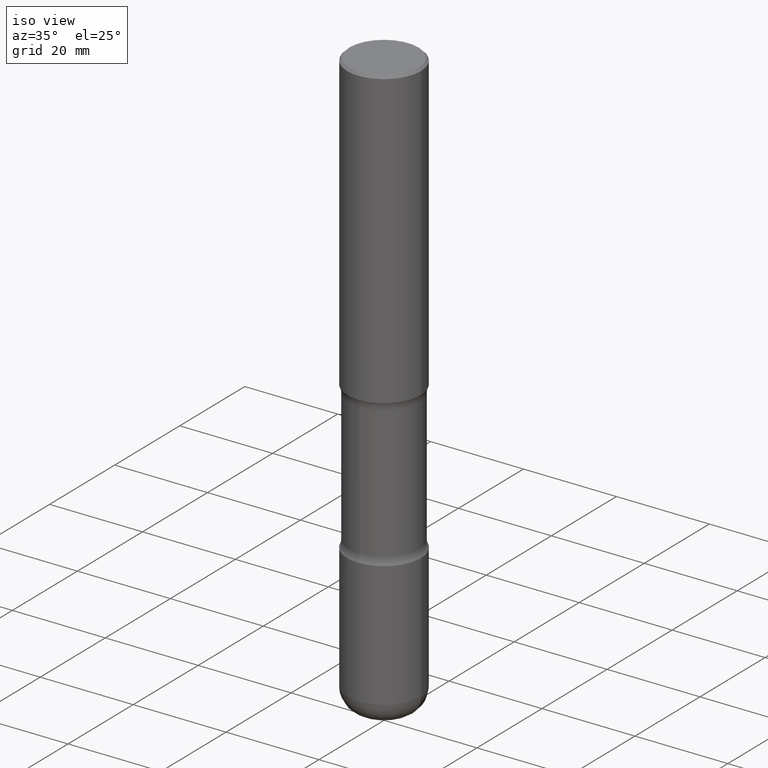
[diagram: clean part render]
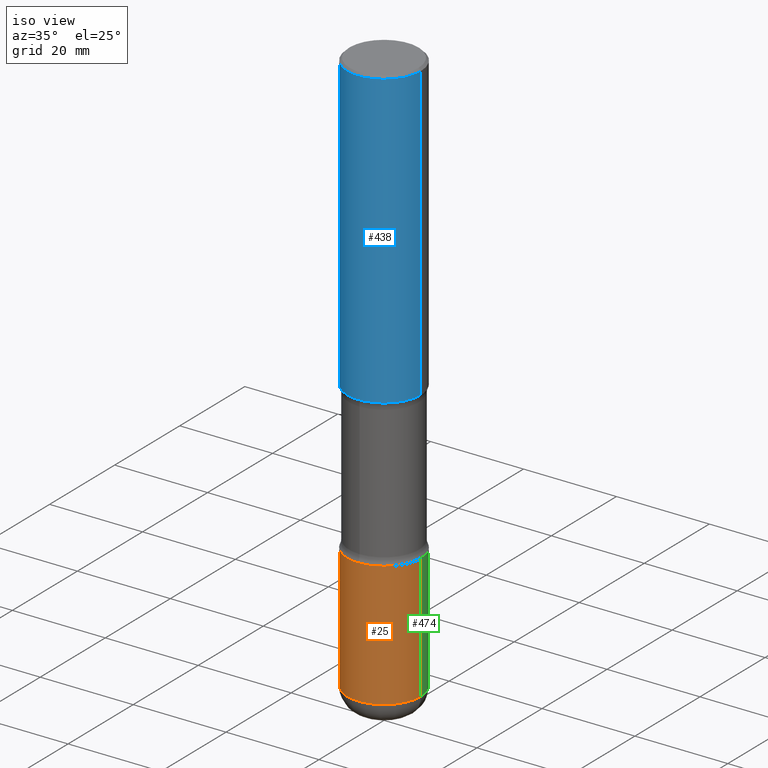
[diagram: same view with three faces highlighted in distinct colors, each labeled with its STEP entity id]
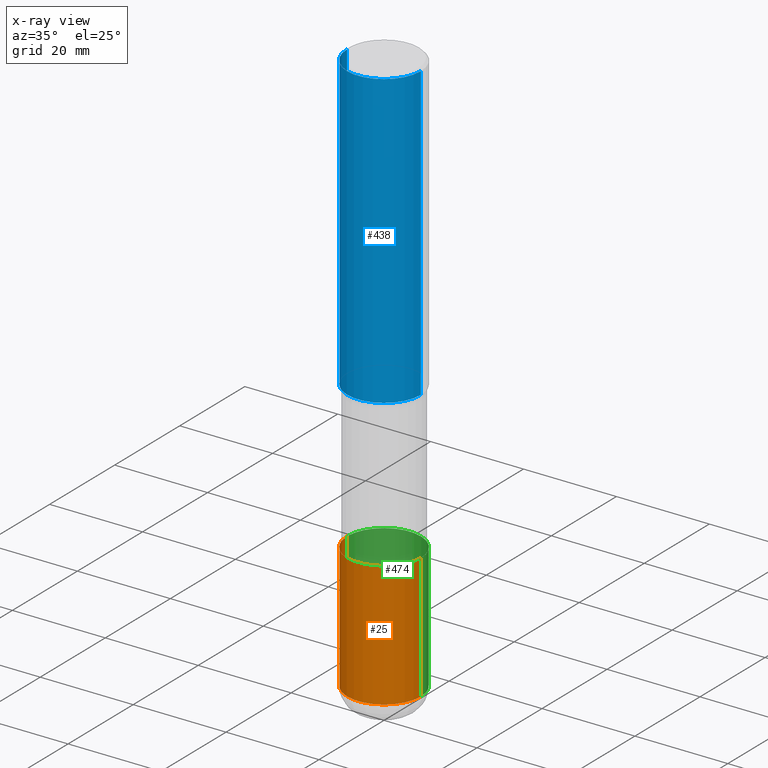
[diagram: x-ray of the same camera — body ghosted, the three highlighted faces saturated]
A machine part, iso view with three faces highlighted in distinct colors.
The next image is the same camera in x-ray (body ghosted, the three faces saturated) — at least one of them is partly hidden behind the body in this view.
Their STEP definitions:

[orange] entity #25 — the highlighted cylindrical surface (partial cylindrical patch) has radius 7.9375 mm, axis along (-0, 0, 1).
#25 = ADVANCED_FACE ( 'NONE', ( #50 ), #442, .T. ) ;
#42 = VERTEX_POINT ( 'NONE', #484 ) ;
#50 = FACE_OUTER_BOUND ( 'NONE', #511, .T. ) ;
#54 = DIRECTION ( 'NONE',  ( 1.000000000000000000, -6.982962677686265133E-15, 0.000000000000000000 ) ) ;
#55 = CARTESIAN_POINT ( 'NONE',  ( 0.000000000000000000, 0.000000000000000000, 0.000000000000000000 ) ) ;
#66 = AXIS2_PLACEMENT_3D ( 'NONE', #55, #452, #242 ) ;
#81 = CARTESIAN_POINT ( 'NONE',  ( 0.3125000000000001665, -2.182175836776959530E-15, 1.523805242436230636E-29 ) ) ;
#84 = VERTEX_POINT ( 'NONE', #537 ) ;
#96 = DIRECTION ( 'NONE',  ( -2.445468806185136597E-29, 3.491481338843145583E-15, 1.000000000000000000 ) ) ;
#104 = VECTOR ( 'NONE', #262, 39.37007874015748143 ) ;
#112 = ORIENTED_EDGE ( 'NONE', *, *, #531, .F. ) ;
#209 = VERTEX_POINT ( 'NONE', #528 ) ;
#227 = DIRECTION ( 'NONE',  ( 1.000000000000000000, -6.982962677686264344E-15, 0.000000000000000000 ) ) ;
#242 = DIRECTION ( 'NONE',  ( 1.000000000000000000, -6.982962677686266711E-15, 4.876176775795935232E-29 ) ) ;
#253 = EDGE_CURVE ( 'NONE', #259, #42, #280, .T. ) ;
#255 = CIRCLE ( 'NONE', #407, 0.3125000000000002220 ) ;
#259 = VERTEX_POINT ( 'NONE', #268 ) ;
#260 = EDGE_CURVE ( 'NONE', #84, #209, #255, .T. ) ;
#262 = DIRECTION ( 'NONE',  ( -2.445468806185136877E-29, 3.491481338843145188E-15, 1.000000000000000000 ) ) ;
#268 = CARTESIAN_POINT ( 'NONE',  ( -0.3125000000000001665, -1.272309408099834754E-14, -3.749999999999999556 ) ) ;
#272 = CARTESIAN_POINT ( 'NONE',  ( 1.176270495775050811E-28, -1.679402523983553013E-14, -4.810000000000000497 ) ) ;
#280 = CIRCLE ( 'NONE', #494, 0.3125000000000001665 ) ;
#291 = VECTOR ( 'NONE', #423, 39.37007874015748143 ) ;
#296 = ORIENTED_EDGE ( 'NONE', *, *, #260, .T. ) ;
#300 = LINE ( 'NONE', #81, #291 ) ;
#352 = CARTESIAN_POINT ( 'NONE',  ( 9.170508023194261117E-29, -1.309305502066179584E-14, -3.749999999999999556 ) ) ;
#383 = EDGE_CURVE ( 'NONE', #209, #42, #300, .T. ) ;
#398 = LINE ( 'NONE', #477, #104 ) ;
#407 = AXIS2_PLACEMENT_3D ( 'NONE', #272, #437, #227 ) ;
#423 = DIRECTION ( 'NONE',  ( -2.445468806185136877E-29, 3.491481338843145188E-15, 1.000000000000000000 ) ) ;
#437 = DIRECTION ( 'NONE',  ( -2.445468806185136597E-29, 3.491481338843145583E-15, 1.000000000000000000 ) ) ;
#442 = CYLINDRICAL_SURFACE ( 'NONE', #66, 0.3125000000000001665 ) ;
#452 = DIRECTION ( 'NONE',  ( -2.445468806185136597E-29, 3.491481338843145583E-15, 1.000000000000000000 ) ) ;
#477 = CARTESIAN_POINT ( 'NONE',  ( -0.3125000000000001665, 2.220446049250314264E-15, -1.537167215704658792E-29 ) ) ;
#484 = CARTESIAN_POINT ( 'NONE',  ( 0.3125000000000001665, -1.527523085743875418E-14, -3.749999999999999556 ) ) ;
#494 = AXIS2_PLACEMENT_3D ( 'NONE', #352, #96, #54 ) ;
#511 = EDGE_LOOP ( 'NONE', ( #112, #296, #555, #559 ) ) ;
#528 = CARTESIAN_POINT ( 'NONE',  ( 0.3125000000000001665, -1.897620107661249005E-14, -4.810000000000000497 ) ) ;
#531 = EDGE_CURVE ( 'NONE', #84, #259, #398, .T. ) ;
#537 = CARTESIAN_POINT ( 'NONE',  ( -0.3125000000000001665, -1.457357919058521389E-14, -4.810000000000000497 ) ) ;
#555 = ORIENTED_EDGE ( 'NONE', *, *, #383, .T. ) ;
#559 = ORIENTED_EDGE ( 'NONE', *, *, #253, .F. ) ;

[blue] entity #438 — the highlighted cylindrical surface (partial cylindrical patch) has radius 7.9375 mm, axis along (-0, 0, 1).
#5 = FACE_OUTER_BOUND ( 'NONE', #467, .T. ) ;
#12 = CARTESIAN_POINT ( 'NONE',  ( 0.000000000000000000, 0.000000000000000000, 0.000000000000000000 ) ) ;
#29 = CARTESIAN_POINT ( 'NONE',  ( -0.3125000000000002220, -2.178820437692046306E-15, -2.499999999999999556 ) ) ;
#68 = VERTEX_POINT ( 'NONE', #400 ) ;
#72 = DIRECTION ( 'NONE',  ( 1.000000000000000000, -6.982962677686266711E-15, 0.000000000000000000 ) ) ;
#82 = EDGE_CURVE ( 'NONE', #367, #525, #527, .T. ) ;
#95 = AXIS2_PLACEMENT_3D ( 'NONE', #12, #488, #351 ) ;
#98 = ORIENTED_EDGE ( 'NONE', *, *, #82, .T. ) ;
#129 = ORIENTED_EDGE ( 'NONE', *, *, #384, .F. ) ;
#131 = VECTOR ( 'NONE', #558, 39.37007874015748143 ) ;
#147 = CARTESIAN_POINT ( 'NONE',  ( -0.3124999999999998890, 2.112346210000094260E-15, -0.02000000000000006981 ) ) ;
#154 = VECTOR ( 'NONE', #270, 39.37007874015748143 ) ;
#157 = DIRECTION ( 'NONE',  ( -2.445468806185136597E-29, 3.491481338843145583E-15, 1.000000000000000000 ) ) ;
#195 = DIRECTION ( 'NONE',  ( -2.445468806185136597E-29, 3.491481338843145583E-15, 1.000000000000000000 ) ) ;
#214 = CIRCLE ( 'NONE', #233, 0.3124999999999998890 ) ;
#219 = ORIENTED_EDGE ( 'NONE', *, *, #415, .T. ) ;
#226 = CARTESIAN_POINT ( 'NONE',  ( 0.3125000000000002220, -1.091087918388482329E-14, -2.499999999999999556 ) ) ;
#233 = AXIS2_PLACEMENT_3D ( 'NONE', #441, #157, #72 ) ;
#237 = CARTESIAN_POINT ( 'NONE',  ( 6.113672015462840371E-29, -8.728703347107863365E-15, -2.499999999999999556 ) ) ;
#256 = ORIENTED_EDGE ( 'NONE', *, *, #271, .F. ) ;
#270 = DIRECTION ( 'NONE',  ( -2.445468806185136877E-29, 3.491481338843145188E-15, 1.000000000000000000 ) ) ;
#271 = EDGE_CURVE ( 'NONE', #475, #68, #214, .T. ) ;
#339 = AXIS2_PLACEMENT_3D ( 'NONE', #237, #195, #364 ) ;
#351 = DIRECTION ( 'NONE',  ( 1.000000000000000000, -6.982962677686266711E-15, 4.876176775795936353E-29 ) ) ;
#364 = DIRECTION ( 'NONE',  ( 1.000000000000000000, -6.982962677686266711E-15, 0.000000000000000000 ) ) ;
#367 = VERTEX_POINT ( 'NONE', #29 ) ;
#384 = EDGE_CURVE ( 'NONE', #367, #475, #385, .T. ) ;
#385 = LINE ( 'NONE', #388, #131 ) ;
#388 = CARTESIAN_POINT ( 'NONE',  ( -0.3125000000000000000, 2.220446049250313081E-15, -1.537167215704658232E-29 ) ) ;
#400 = CARTESIAN_POINT ( 'NONE',  ( 0.3124999999999998890, -2.213735251080466123E-15, -0.02000000000000006981 ) ) ;
#402 = CYLINDRICAL_SURFACE ( 'NONE', #95, 0.3125000000000000000 ) ;
#415 = EDGE_CURVE ( 'NONE', #525, #68, #516, .T. ) ;
#438 = ADVANCED_FACE ( 'NONE', ( #5 ), #402, .T. ) ;
#441 = CARTESIAN_POINT ( 'NONE',  ( 4.890937612370289799E-31, -6.982962677686315028E-17, -0.02000000000000006981 ) ) ;
#443 = CARTESIAN_POINT ( 'NONE',  ( 0.3125000000000000000, -2.182175836776958347E-15, 1.523805242436230075E-29 ) ) ;
#467 = EDGE_LOOP ( 'NONE', ( #129, #98, #219, #256 ) ) ;
#475 = VERTEX_POINT ( 'NONE', #147 ) ;
#488 = DIRECTION ( 'NONE',  ( -2.445468806185136597E-29, 3.491481338843145583E-15, 1.000000000000000000 ) ) ;
#516 = LINE ( 'NONE', #443, #154 ) ;
#525 = VERTEX_POINT ( 'NONE', #226 ) ;
#527 = CIRCLE ( 'NONE', #339, 0.3125000000000002220 ) ;
#558 = DIRECTION ( 'NONE',  ( -2.445468806185136877E-29, 3.491481338843145188E-15, 1.000000000000000000 ) ) ;

[green] entity #474 — the highlighted cylindrical surface (partial cylindrical patch) has radius 7.9375 mm, axis along (-0, 0, 1).
#13 = DIRECTION ( 'NONE',  ( -2.445468806185136597E-29, 3.491481338843145583E-15, 1.000000000000000000 ) ) ;
#15 = CARTESIAN_POINT ( 'NONE',  ( 1.176270495775050811E-28, -1.679402523983553013E-14, -4.810000000000000497 ) ) ;
#42 = VERTEX_POINT ( 'NONE', #484 ) ;
#43 = ORIENTED_EDGE ( 'NONE', *, *, #427, .T. ) ;
#48 = ORIENTED_EDGE ( 'NONE', *, *, #531, .T. ) ;
#62 = EDGE_CURVE ( 'NONE', #42, #259, #404, .T. ) ;
#67 = CIRCLE ( 'NONE', #513, 0.3125000000000002220 ) ;
#81 = CARTESIAN_POINT ( 'NONE',  ( 0.3125000000000001665, -2.182175836776959530E-15, 1.523805242436230636E-29 ) ) ;
#84 = VERTEX_POINT ( 'NONE', #537 ) ;
#88 = ORIENTED_EDGE ( 'NONE', *, *, #62, .F. ) ;
#102 = DIRECTION ( 'NONE',  ( 1.000000000000000000, -6.982962677686264344E-15, 0.000000000000000000 ) ) ;
#104 = VECTOR ( 'NONE', #262, 39.37007874015748143 ) ;
#188 = DIRECTION ( 'NONE',  ( -2.445468806185136597E-29, 3.491481338843145583E-15, 1.000000000000000000 ) ) ;
#209 = VERTEX_POINT ( 'NONE', #528 ) ;
#210 = AXIS2_PLACEMENT_3D ( 'NONE', #411, #535, #239 ) ;
#228 = DIRECTION ( 'NONE',  ( 1.000000000000000000, -6.982962677686265133E-15, 0.000000000000000000 ) ) ;
#231 = CARTESIAN_POINT ( 'NONE',  ( 9.170508023194261117E-29, -1.309305502066179584E-14, -3.749999999999999556 ) ) ;
#239 = DIRECTION ( 'NONE',  ( 1.000000000000000000, -6.982962677686266711E-15, 4.876176775795935232E-29 ) ) ;
#259 = VERTEX_POINT ( 'NONE', #268 ) ;
#262 = DIRECTION ( 'NONE',  ( -2.445468806185136877E-29, 3.491481338843145188E-15, 1.000000000000000000 ) ) ;
#268 = CARTESIAN_POINT ( 'NONE',  ( -0.3125000000000001665, -1.272309408099834754E-14, -3.749999999999999556 ) ) ;
#281 = CYLINDRICAL_SURFACE ( 'NONE', #210, 0.3125000000000001665 ) ;
#291 = VECTOR ( 'NONE', #423, 39.37007874015748143 ) ;
#300 = LINE ( 'NONE', #81, #291 ) ;
#315 = FACE_OUTER_BOUND ( 'NONE', #353, .T. ) ;
#353 = EDGE_LOOP ( 'NONE', ( #43, #48, #88, #397 ) ) ;
#383 = EDGE_CURVE ( 'NONE', #209, #42, #300, .T. ) ;
#397 = ORIENTED_EDGE ( 'NONE', *, *, #383, .F. ) ;
#398 = LINE ( 'NONE', #477, #104 ) ;
#404 = CIRCLE ( 'NONE', #425, 0.3125000000000001665 ) ;
#411 = CARTESIAN_POINT ( 'NONE',  ( 0.000000000000000000, 0.000000000000000000, 0.000000000000000000 ) ) ;
#423 = DIRECTION ( 'NONE',  ( -2.445468806185136877E-29, 3.491481338843145188E-15, 1.000000000000000000 ) ) ;
#425 = AXIS2_PLACEMENT_3D ( 'NONE', #231, #13, #228 ) ;
#427 = EDGE_CURVE ( 'NONE', #209, #84, #67, .T. ) ;
#474 = ADVANCED_FACE ( 'NONE', ( #315 ), #281, .T. ) ;
#477 = CARTESIAN_POINT ( 'NONE',  ( -0.3125000000000001665, 2.220446049250314264E-15, -1.537167215704658792E-29 ) ) ;
#484 = CARTESIAN_POINT ( 'NONE',  ( 0.3125000000000001665, -1.527523085743875418E-14, -3.749999999999999556 ) ) ;
#513 = AXIS2_PLACEMENT_3D ( 'NONE', #15, #188, #102 ) ;
#528 = CARTESIAN_POINT ( 'NONE',  ( 0.3125000000000001665, -1.897620107661249005E-14, -4.810000000000000497 ) ) ;
#531 = EDGE_CURVE ( 'NONE', #84, #259, #398, .T. ) ;
#535 = DIRECTION ( 'NONE',  ( -2.445468806185136597E-29, 3.491481338843145583E-15, 1.000000000000000000 ) ) ;
#537 = CARTESIAN_POINT ( 'NONE',  ( -0.3125000000000001665, -1.457357919058521389E-14, -4.810000000000000497 ) ) ;